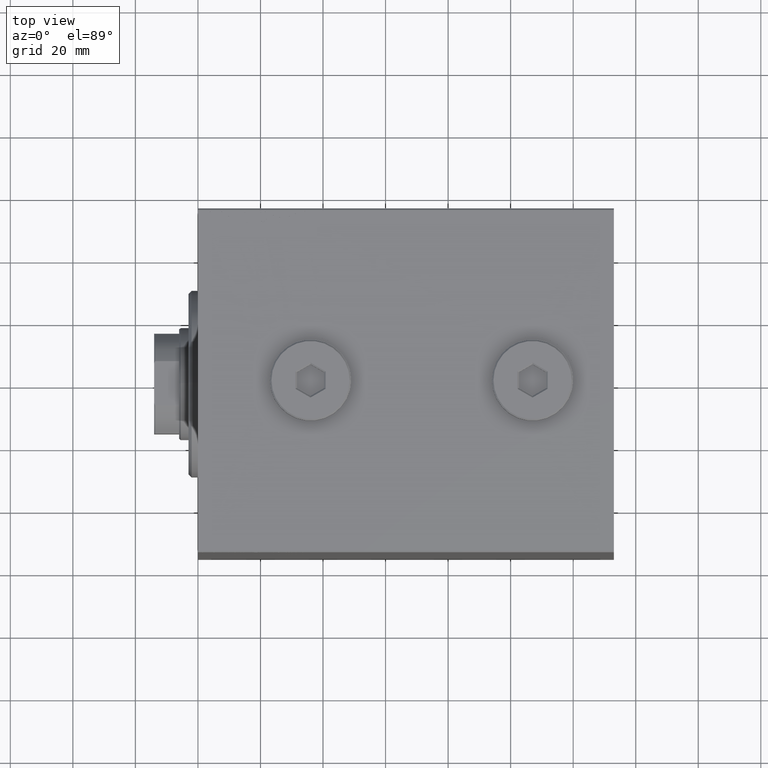
[diagram: clean part render]
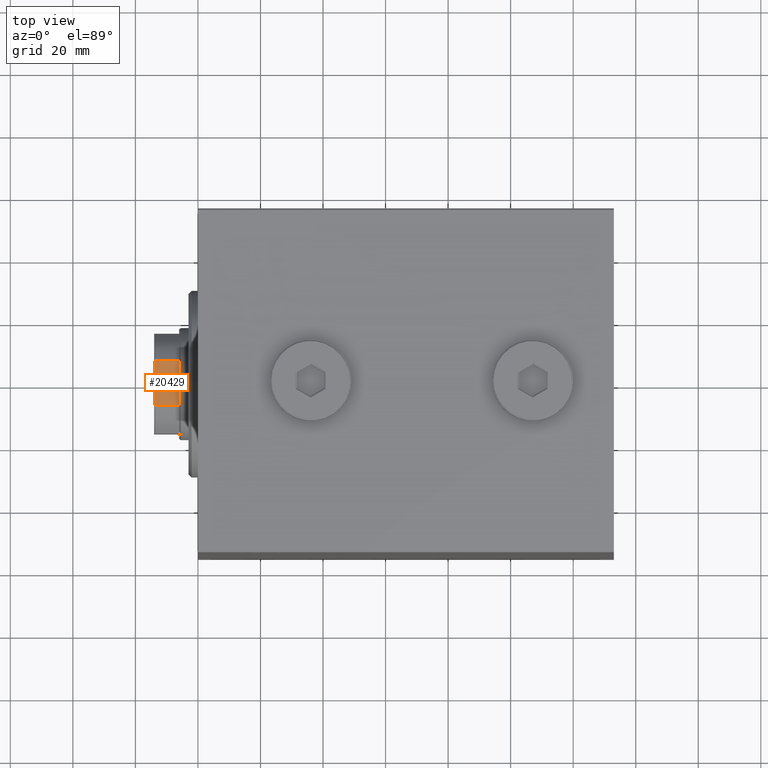
[diagram: same view with one face highlighted and labeled with its STEP entity id]
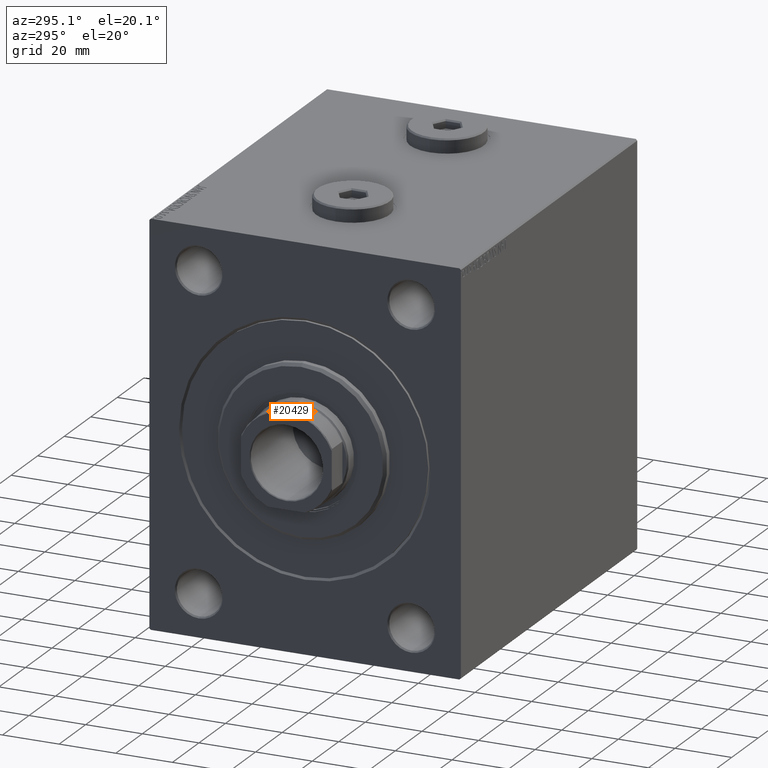
[diagram: same view with one face highlighted and labeled with its STEP entity id]
A machine part, top view. The second image highlights one B-rep face of the part: STEP entity #20429.
A second angle (auxiliary view) of the same face is appended — the face is thin or edge-on in the first view.
In plain terms, the highlighted planar face has unit normal (-0, -0, -1).
Its self-contained STEP definition (entity closure, byte-faithful):
#1777 = ORIENTED_EDGE ( 'NONE', *, *, #7953, .T. ) ;
#1797 = CARTESIAN_POINT ( 'NONE',  ( 16.00000000000000000, 6.311893535223812357, 126.0000000000000000 ) ) ;
#2528 = CARTESIAN_POINT ( 'NONE',  ( 16.00000000000000355, -6.311893535223839891, 126.0000000000000000 ) ) ;
#2664 = LINE ( 'NONE', #5918, #24057 ) ;
#3181 = VECTOR ( 'NONE', #10628, 1000.000000000000000 ) ;
#4723 = EDGE_CURVE ( 'NONE', #20130, #23946, #18457, .T. ) ;
#5918 = CARTESIAN_POINT ( 'NONE',  ( 16.00000000000000000, 16.00000000000000000, 126.0000000000000000 ) ) ;
#6130 = DIRECTION ( 'NONE',  ( -1.000000000000000000, -1.084202172485504434E-16, 0.000000000000000000 ) ) ;
#7529 = LINE ( 'NONE', #11451, #17632 ) ;
#7953 = EDGE_CURVE ( 'NONE', #28742, #28971, #12734, .T. ) ;
#9441 = ORIENTED_EDGE ( 'NONE', *, *, #17585, .T. ) ;
#10428 = CARTESIAN_POINT ( 'NONE',  ( 15.99999999999999645, -7.088723439378925129, 125.6999999999999744 ) ) ;
#10628 = DIRECTION ( 'NONE',  ( -0.000000000000000000, -0.000000000000000000, 1.000000000000000000 ) ) ;
#10698 = ORIENTED_EDGE ( 'NONE', *, *, #43998, .F. ) ;
#10729 = CARTESIAN_POINT ( 'NONE',  ( 16.00000000000000000, 7.088723439378916247, 118.0000000000000284 ) ) ;
#10769 = EDGE_CURVE ( 'NONE', #30650, #23946, #37534, .T. ) ;
#11451 = CARTESIAN_POINT ( 'NONE',  ( 16.00000000000000000, 16.00000000000000000, 118.0000000000000000 ) ) ;
#12734 = B_SPLINE_CURVE_WITH_KNOTS ( 'NONE', 3,
 ( #34851, #34406, #27687, #23311 ),
 .UNSPECIFIED., .F., .F.,
 ( 4, 4 ),
 ( 0.000000000000000000, 0.0008327452791758361726 ),
 .UNSPECIFIED. ) ;
#14533 = LINE ( 'NONE', #42266, #3181 ) ;
#15349 = AXIS2_PLACEMENT_3D ( 'NONE', #23221, #6130, #24115 ) ;
#16396 = CARTESIAN_POINT ( 'NONE',  ( 16.00000000000000000, 7.088723439378916247, 125.6999999999999744 ) ) ;
#17068 = CARTESIAN_POINT ( 'NONE',  ( 16.00000000000000000, -6.572519770966312791, 125.9043578457852988 ) ) ;
#17585 = EDGE_CURVE ( 'NONE', #30650, #36541, #7529, .T. ) ;
#17632 = VECTOR ( 'NONE', #24227, 1000.000000000000000 ) ;
#18457 = B_SPLINE_CURVE_WITH_KNOTS ( 'NONE', 3,
 ( #2528, #17068, #20527, #31408 ),
 .UNSPECIFIED., .F., .F.,
 ( 4, 4 ),
 ( 8.673617379884035472E-19, 0.0008327452791758183917 ),
 .UNSPECIFIED. ) ;
#19904 = EDGE_LOOP ( 'NONE', ( #31771, #1777, #10698, #43235, #22730, #9441 ) ) ;
#20130 = VERTEX_POINT ( 'NONE', #23274 ) ;
#20429 = ADVANCED_FACE ( 'NONE', ( #34531 ), #31309, .F. ) ;
#20527 = CARTESIAN_POINT ( 'NONE',  ( 16.00000000000000355, -6.831413176973291534, 125.8042286450461518 ) ) ;
#22730 = ORIENTED_EDGE ( 'NONE', *, *, #10769, .F. ) ;
#23221 = CARTESIAN_POINT ( 'NONE',  ( 16.00000000000000000, 16.00000000000000000, 126.0000000000000000 ) ) ;
#23274 = CARTESIAN_POINT ( 'NONE',  ( 16.00000000000000355, -6.311893535223839891, 126.0000000000000000 ) ) ;
#23311 = CARTESIAN_POINT ( 'NONE',  ( 16.00000000000000000, 6.311893535223812357, 126.0000000000000000 ) ) ;
#23458 = DIRECTION ( 'NONE',  ( -1.084202172485504434E-16, 1.000000000000000000, -0.000000000000000000 ) ) ;
#23654 = VECTOR ( 'NONE', #44471, 1000.000000000000000 ) ;
#23946 = VERTEX_POINT ( 'NONE', #10428 ) ;
#24057 = VECTOR ( 'NONE', #23458, 1000.000000000000000 ) ;
#24115 = DIRECTION ( 'NONE',  ( 1.084202172485504434E-16, -1.000000000000000000, 0.000000000000000000 ) ) ;
#24227 = DIRECTION ( 'NONE',  ( -1.084202172485504434E-16, 1.000000000000000000, -0.000000000000000000 ) ) ;
#27687 = CARTESIAN_POINT ( 'NONE',  ( 16.00000000000000000, 6.572519770966295027, 125.9043578457852988 ) ) ;
#27917 = CARTESIAN_POINT ( 'NONE',  ( 15.99999999999999645, -7.088723439378925129, 118.0000000000000284 ) ) ;
#28742 = VERTEX_POINT ( 'NONE', #16396 ) ;
#28971 = VERTEX_POINT ( 'NONE', #1797 ) ;
#30650 = VERTEX_POINT ( 'NONE', #27917 ) ;
#31309 = PLANE ( 'NONE',  #15349 ) ;
#31408 = CARTESIAN_POINT ( 'NONE',  ( 15.99999999999999645, -7.088723439378925129, 125.6999999999999744 ) ) ;
#31771 = ORIENTED_EDGE ( 'NONE', *, *, #37138, .T. ) ;
#34406 = CARTESIAN_POINT ( 'NONE',  ( 16.00000000000000000, 6.831413176973276435, 125.8042286450461518 ) ) ;
#34531 = FACE_OUTER_BOUND ( 'NONE', #19904, .T. ) ;
#34851 = CARTESIAN_POINT ( 'NONE',  ( 16.00000000000000000, 7.088723439378916247, 125.6999999999999744 ) ) ;
#36541 = VERTEX_POINT ( 'NONE', #10729 ) ;
#37138 = EDGE_CURVE ( 'NONE', #36541, #28742, #14533, .T. ) ;
#37534 = LINE ( 'NONE', #41216, #23654 ) ;
#41216 = CARTESIAN_POINT ( 'NONE',  ( 15.99999999999999645, -7.088723439378925129, -0.001000000000001000089 ) ) ;
#42266 = CARTESIAN_POINT ( 'NONE',  ( 16.00000000000000000, 7.088723439378916247, -0.001000000000001000089 ) ) ;
#43235 = ORIENTED_EDGE ( 'NONE', *, *, #4723, .T. ) ;
#43998 = EDGE_CURVE ( 'NONE', #20130, #28971, #2664, .T. ) ;
#44471 = DIRECTION ( 'NONE',  ( -0.000000000000000000, -0.000000000000000000, 1.000000000000000000 ) ) ;